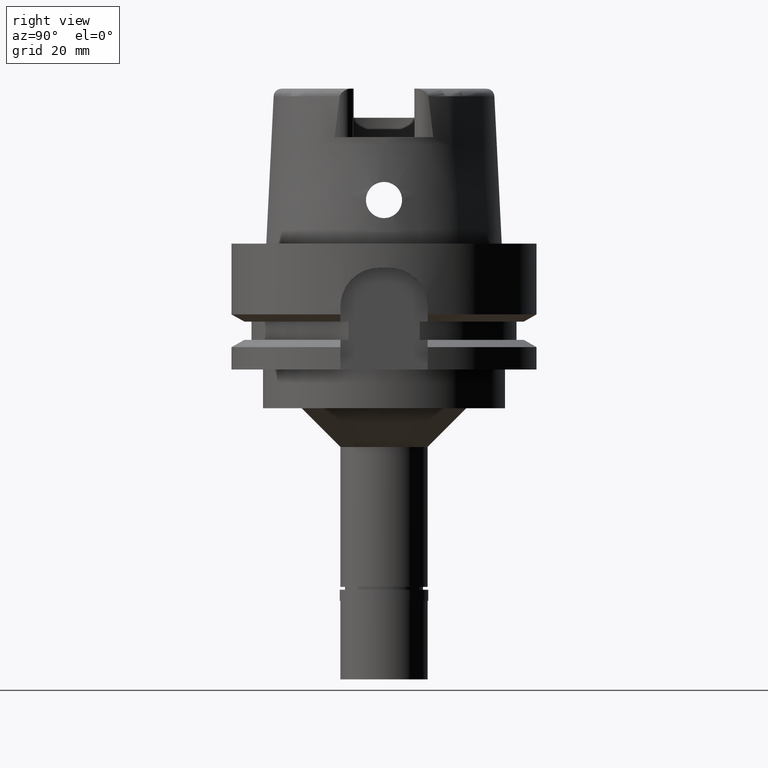
[diagram: clean part render]
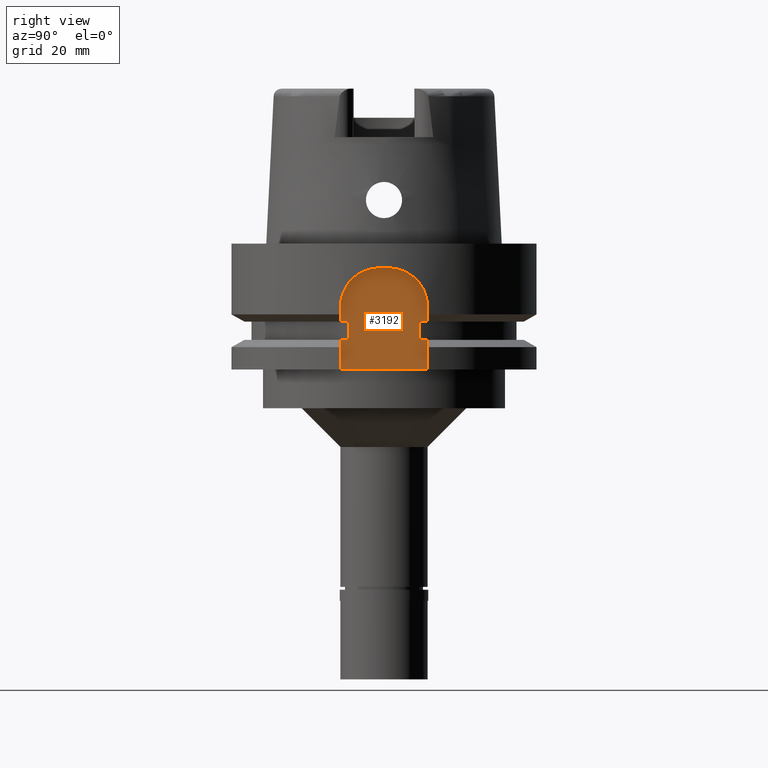
[diagram: same view with one face highlighted and labeled with its STEP entity id]
A machine part, right view. The second image highlights one B-rep face of the part: STEP entity #3192.
In plain terms, the highlighted planar face has unit normal (1, 0, 0).
Its self-contained STEP definition (entity closure, byte-faithful):
#34 = CARTESIAN_POINT ( 'NONE',  ( 26.50000000000000000, -1.000000000000000000, -13.00000000000000000 ) ) ;
#114 = CARTESIAN_POINT ( 'NONE',  ( 26.50000000000000000, -9.000000000000000000, -19.87500000000000000 ) ) ;
#137 = LINE ( 'NONE', #1854, #4673 ) ;
#138 = CARTESIAN_POINT ( 'NONE',  ( 26.50000000000000000, 9.000000000000000000, -13.00000000000000000 ) ) ;
#196 = VERTEX_POINT ( 'NONE', #952 ) ;
#226 = LINE ( 'NONE', #5023, #5426 ) ;
#343 = DIRECTION ( 'NONE',  ( 0.0000000000000000000, 0.0000000000000000000, 1.000000000000000000 ) ) ;
#344 = EDGE_CURVE ( 'NONE', #3746, #4399, #2888, .T. ) ;
#359 = DIRECTION ( 'NONE',  ( 0.0000000000000000000, 0.0000000000000000000, 1.000000000000000000 ) ) ;
#775 = CIRCLE ( 'NONE', #1225, 8.000000000000000000 ) ;
#883 = CARTESIAN_POINT ( 'NONE',  ( 26.50000000000000000, 1.000000000000000000, -5.000000000000000000 ) ) ;
#931 = PLANE ( 'NONE',  #3792 ) ;
#952 = CARTESIAN_POINT ( 'NONE',  ( 26.50000000000000000, 7.348469228349999938, -16.12500000000000000 ) ) ;
#974 = VECTOR ( 'NONE', #3724, 1000.000000000000000 ) ;
#1014 = VECTOR ( 'NONE', #1190, 1000.000000000000000 ) ;
#1110 = CARTESIAN_POINT ( 'NONE',  ( 26.50000000000000000, -9.000000000000000000, -19.87500000000000000 ) ) ;
#1123 = CARTESIAN_POINT ( 'NONE',  ( 26.50000000000000000, -7.348469228349999938, -19.87500000000000000 ) ) ;
#1142 = EDGE_CURVE ( 'NONE', #1188, #196, #1637, .T. ) ;
#1161 = VERTEX_POINT ( 'NONE', #5490 ) ;
#1182 = DIRECTION ( 'NONE',  ( 0.0000000000000000000, 1.000000000000000000, 0.0000000000000000000 ) ) ;
#1188 = VERTEX_POINT ( 'NONE', #5107 ) ;
#1190 = DIRECTION ( 'NONE',  ( 0.0000000000000000000, 1.000000000000000000, 0.0000000000000000000 ) ) ;
#1210 = VECTOR ( 'NONE', #359, 1000.000000000000000 ) ;
#1225 = AXIS2_PLACEMENT_3D ( 'NONE', #1975, #1477, #1560 ) ;
#1310 = VERTEX_POINT ( 'NONE', #1110 ) ;
#1368 = LINE ( 'NONE', #114, #2991 ) ;
#1477 = DIRECTION ( 'NONE',  ( -1.000000000000000000, 0.0000000000000000000, 0.0000000000000000000 ) ) ;
#1498 = VERTEX_POINT ( 'NONE', #3874 ) ;
#1560 = DIRECTION ( 'NONE',  ( 0.0000000000000000000, 1.246290397272087347E-13, 1.000000000000000000 ) ) ;
#1637 = LINE ( 'NONE', #1667, #4437 ) ;
#1667 = CARTESIAN_POINT ( 'NONE',  ( 26.50000000000000000, 7.348469228349999938, -19.87500000000000000 ) ) ;
#1752 = DIRECTION ( 'NONE',  ( -2.366280491871000116E-14, 1.000000000000000000, 0.0000000000000000000 ) ) ;
#1798 = CARTESIAN_POINT ( 'NONE',  ( 26.50000000000000000, -9.000000000000000000, -16.12500000000000000 ) ) ;
#1854 = CARTESIAN_POINT ( 'NONE',  ( 26.50000000000000000, 7.348469228349999938, -16.12500000000000000 ) ) ;
#1897 = FACE_OUTER_BOUND ( 'NONE', #3380, .T. ) ;
#1975 = CARTESIAN_POINT ( 'NONE',  ( 26.50000000000000000, 1.000000000000000000, -13.00000000000000000 ) ) ;
#1999 = ORIENTED_EDGE ( 'NONE', *, *, #4490, .F. ) ;
#2166 = ORIENTED_EDGE ( 'NONE', *, *, #4563, .F. ) ;
#2181 = ORIENTED_EDGE ( 'NONE', *, *, #2684, .T. ) ;
#2236 = CARTESIAN_POINT ( 'NONE',  ( 26.50000000000000000, 9.000000000000000000, -19.87500000000000000 ) ) ;
#2271 = ORIENTED_EDGE ( 'NONE', *, *, #3517, .F. ) ;
#2287 = DIRECTION ( 'NONE',  ( 0.0000000000000000000, 1.000000000000000000, 0.0000000000000000000 ) ) ;
#2288 = CARTESIAN_POINT ( 'NONE',  ( 26.50000000000000000, 9.000000000000000000, -16.12500000000000000 ) ) ;
#2315 = DIRECTION ( 'NONE',  ( 0.0000000000000000000, 0.0000000000000000000, -1.000000000000000000 ) ) ;
#2377 = LINE ( 'NONE', #4600, #1014 ) ;
#2395 = VERTEX_POINT ( 'NONE', #1798 ) ;
#2442 = EDGE_CURVE ( 'NONE', #196, #4399, #137, .T. ) ;
#2604 = CARTESIAN_POINT ( 'NONE',  ( 26.50000000000000000, -9.000000000000000000, -16.12500000000000000 ) ) ;
#2611 = VECTOR ( 'NONE', #4232, 1000.000000000000000 ) ;
#2641 = CARTESIAN_POINT ( 'NONE',  ( 26.50000000000000000, -1.000000000001000089, -5.000000000000000000 ) ) ;
#2651 = DIRECTION ( 'NONE',  ( 2.366280491871000116E-14, 1.000000000000000000, 0.0000000000000000000 ) ) ;
#2652 = CARTESIAN_POINT ( 'NONE',  ( 26.50000000000000000, -7.348469228349999938, -16.12500000000000000 ) ) ;
#2684 = EDGE_CURVE ( 'NONE', #3885, #4620, #5545, .T. ) ;
#2780 = EDGE_CURVE ( 'NONE', #1161, #1310, #4281, .T. ) ;
#2888 = LINE ( 'NONE', #5442, #4928 ) ;
#2991 = VECTOR ( 'NONE', #1752, 1000.000000000000000 ) ;
#2993 = CARTESIAN_POINT ( 'NONE',  ( 26.50000000000000000, 7.348469228349999938, -19.87500000000000000 ) ) ;
#2994 = LINE ( 'NONE', #4720, #3458 ) ;
#3001 = VERTEX_POINT ( 'NONE', #4607 ) ;
#3055 = CARTESIAN_POINT ( 'NONE',  ( 26.50000000000000000, 0.0000000000000000000, 0.0000000000000000000 ) ) ;
#3081 = LINE ( 'NONE', #2236, #3637 ) ;
#3192 = ADVANCED_FACE ( 'NONE', ( #1897 ), #931, .T. ) ;
#3296 = ORIENTED_EDGE ( 'NONE', *, *, #2780, .F. ) ;
#3309 = ORIENTED_EDGE ( 'NONE', *, *, #2442, .T. ) ;
#3368 = LINE ( 'NONE', #2604, #1210 ) ;
#3380 = EDGE_LOOP ( 'NONE', ( #1999, #2271, #3793, #3309, #5331, #2166, #4342, #3712, #4428, #5395, #2181, #5154, #3296, #3836 ) ) ;
#3387 = VECTOR ( 'NONE', #3754, 1000.000000000000000 ) ;
#3458 = VECTOR ( 'NONE', #3762, 1000.000000000000000 ) ;
#3517 = EDGE_CURVE ( 'NONE', #1188, #4121, #3797, .T. ) ;
#3605 = AXIS2_PLACEMENT_3D ( 'NONE', #34, #5188, #3958 ) ;
#3637 = VECTOR ( 'NONE', #2315, 1000.000000000000000 ) ;
#3654 = DIRECTION ( 'NONE',  ( 0.0000000000000000000, 0.0000000000000000000, -1.000000000000000000 ) ) ;
#3712 = ORIENTED_EDGE ( 'NONE', *, *, #3800, .F. ) ;
#3724 = DIRECTION ( 'NONE',  ( 0.0000000000000000000, 0.0000000000000000000, 1.000000000000000000 ) ) ;
#3746 = VERTEX_POINT ( 'NONE', #138 ) ;
#3754 = DIRECTION ( 'NONE',  ( 0.0000000000000000000, 0.0000000000000000000, -1.000000000000000000 ) ) ;
#3762 = DIRECTION ( 'NONE',  ( -2.366280491871000116E-14, 1.000000000000000000, 0.0000000000000000000 ) ) ;
#3787 = CARTESIAN_POINT ( 'NONE',  ( 26.50000000000000000, -7.348469228349999938, -16.12500000000000000 ) ) ;
#3792 = AXIS2_PLACEMENT_3D ( 'NONE', #3055, #4833, #2287 ) ;
#3793 = ORIENTED_EDGE ( 'NONE', *, *, #1142, .T. ) ;
#3797 = LINE ( 'NONE', #2993, #2611 ) ;
#3799 = CIRCLE ( 'NONE', #3605, 8.000000000000000000 ) ;
#3800 = EDGE_CURVE ( 'NONE', #3001, #4114, #3799, .T. ) ;
#3836 = ORIENTED_EDGE ( 'NONE', *, *, #4634, .T. ) ;
#3874 = CARTESIAN_POINT ( 'NONE',  ( 26.50000000000000000, 9.000000000000000000, -26.00000000000000000 ) ) ;
#3885 = VERTEX_POINT ( 'NONE', #2652 ) ;
#3958 = DIRECTION ( 'NONE',  ( 0.0000000000000000000, -1.000000000000000000, 0.0000000000000000000 ) ) ;
#4114 = VERTEX_POINT ( 'NONE', #2641 ) ;
#4121 = VERTEX_POINT ( 'NONE', #4386 ) ;
#4207 = EDGE_CURVE ( 'NONE', #4114, #5102, #2377, .T. ) ;
#4232 = DIRECTION ( 'NONE',  ( 2.366280491871000116E-14, 1.000000000000000000, 0.0000000000000000000 ) ) ;
#4281 = LINE ( 'NONE', #5078, #974 ) ;
#4342 = ORIENTED_EDGE ( 'NONE', *, *, #4207, .F. ) ;
#4386 = CARTESIAN_POINT ( 'NONE',  ( 26.50000000000000000, 9.000000000000000000, -19.87500000000000000 ) ) ;
#4399 = VERTEX_POINT ( 'NONE', #2288 ) ;
#4428 = ORIENTED_EDGE ( 'NONE', *, *, #5336, .F. ) ;
#4437 = VECTOR ( 'NONE', #343, 1000.000000000000000 ) ;
#4490 = EDGE_CURVE ( 'NONE', #4121, #1498, #3081, .T. ) ;
#4563 = EDGE_CURVE ( 'NONE', #5102, #3746, #775, .T. ) ;
#4600 = CARTESIAN_POINT ( 'NONE',  ( 26.50000000000000000, -1.000000000000000000, -5.000000000000000000 ) ) ;
#4607 = CARTESIAN_POINT ( 'NONE',  ( 26.50000000000000000, -9.000000000000000000, -13.00000000000000000 ) ) ;
#4620 = VERTEX_POINT ( 'NONE', #1123 ) ;
#4634 = EDGE_CURVE ( 'NONE', #1161, #1498, #226, .T. ) ;
#4673 = VECTOR ( 'NONE', #2651, 1000.000000000000000 ) ;
#4720 = CARTESIAN_POINT ( 'NONE',  ( 26.50000000000000000, -9.000000000000000000, -16.12500000000000000 ) ) ;
#4794 = EDGE_CURVE ( 'NONE', #2395, #3885, #2994, .T. ) ;
#4833 = DIRECTION ( 'NONE',  ( 1.000000000000000000, 0.0000000000000000000, 0.0000000000000000000 ) ) ;
#4928 = VECTOR ( 'NONE', #3654, 1000.000000000000000 ) ;
#4986 = EDGE_CURVE ( 'NONE', #1310, #4620, #1368, .T. ) ;
#5023 = CARTESIAN_POINT ( 'NONE',  ( 26.50000000000000000, -9.000000000000000000, -26.00000000000000000 ) ) ;
#5078 = CARTESIAN_POINT ( 'NONE',  ( 26.50000000000000000, -9.000000000000000000, -26.00000000000000000 ) ) ;
#5102 = VERTEX_POINT ( 'NONE', #883 ) ;
#5107 = CARTESIAN_POINT ( 'NONE',  ( 26.50000000000000000, 7.348469228349999938, -19.87500000000000000 ) ) ;
#5154 = ORIENTED_EDGE ( 'NONE', *, *, #4986, .F. ) ;
#5188 = DIRECTION ( 'NONE',  ( -1.000000000000000000, 0.0000000000000000000, 0.0000000000000000000 ) ) ;
#5331 = ORIENTED_EDGE ( 'NONE', *, *, #344, .F. ) ;
#5336 = EDGE_CURVE ( 'NONE', #2395, #3001, #3368, .T. ) ;
#5395 = ORIENTED_EDGE ( 'NONE', *, *, #4794, .T. ) ;
#5426 = VECTOR ( 'NONE', #1182, 1000.000000000000000 ) ;
#5442 = CARTESIAN_POINT ( 'NONE',  ( 26.50000000000000000, 9.000000000000000000, -13.00000000000000000 ) ) ;
#5490 = CARTESIAN_POINT ( 'NONE',  ( 26.50000000000000000, -9.000000000000000000, -26.00000000000000000 ) ) ;
#5545 = LINE ( 'NONE', #3787, #3387 ) ;